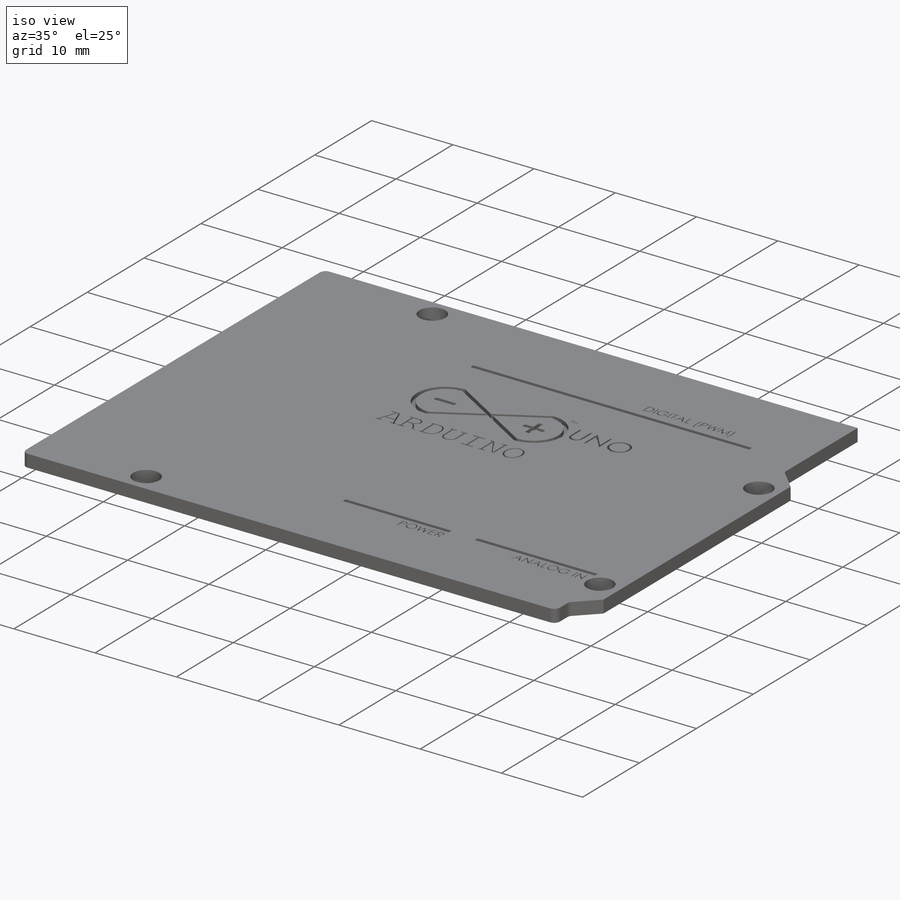
[diagram: iso view]
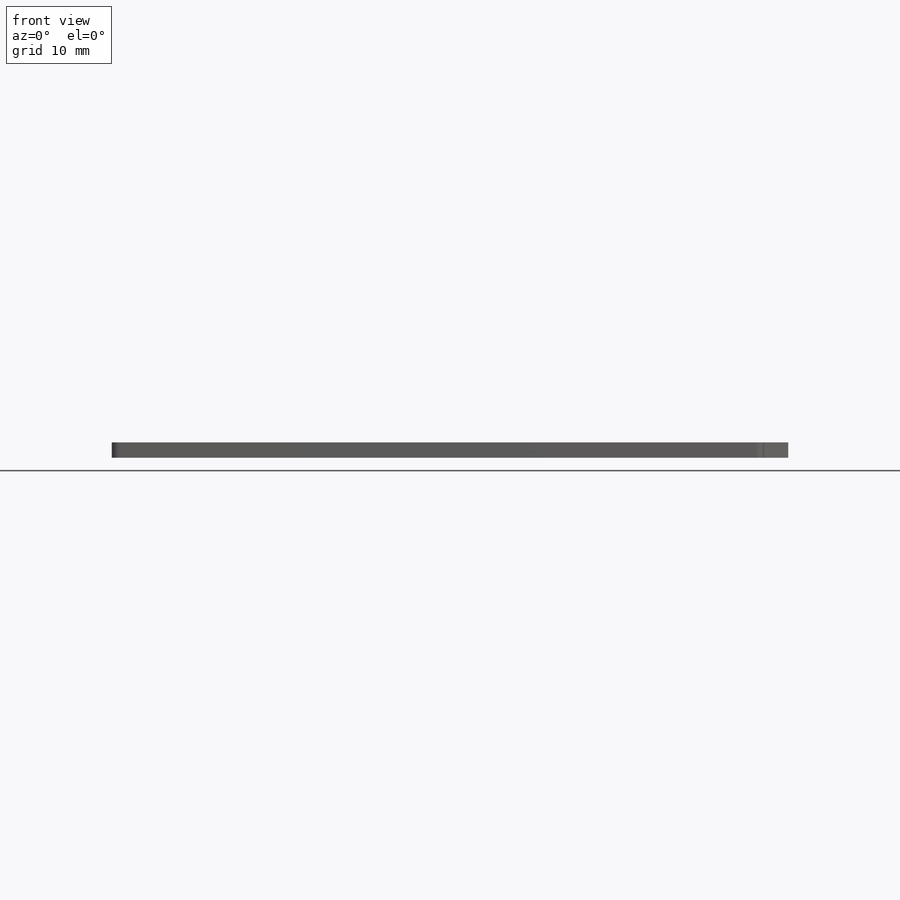
[diagram: front view]
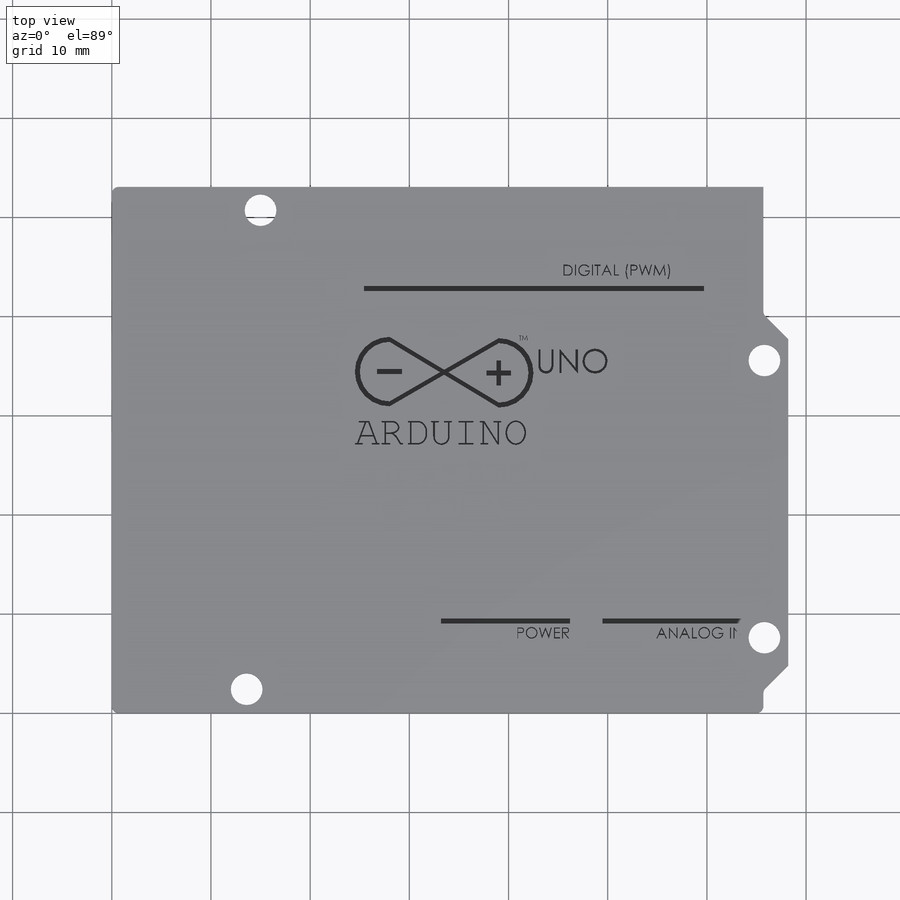
[diagram: top view]
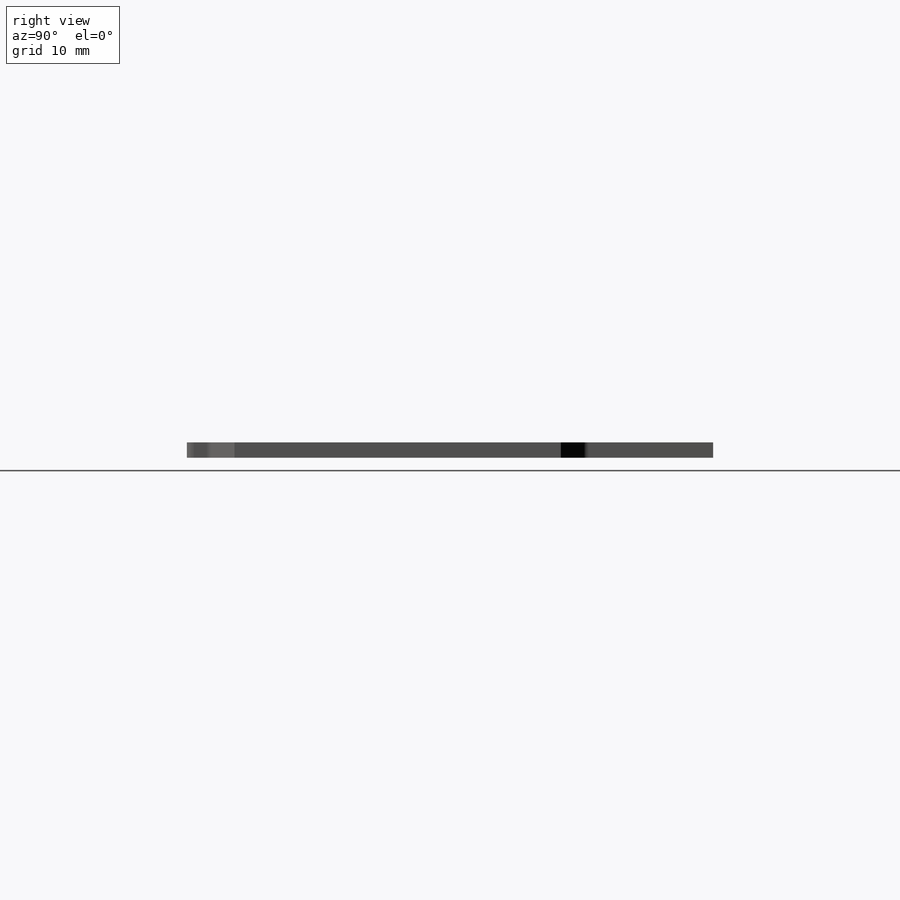
[diagram: right view]
SOLIDWORKS PART (.sldprt)
format: sldprt  version: not decoded by parser v0  size: 1,125,888 bytes
history: native  units: mm
features: sketch x6, cut_extrude x5, plane x3, material x1, extrude x1, fillet x1 (+10 scaffold rows collapsed)
feature tree (27):
  scaffold x10  (default folders/planes/origin — collapsed)
  material  "Material <not specified>"
  plane  "Plan de face"
  plane  "Plan de dessus"
  plane  "Plan de droite"
  sketch  "Esquisse1"  dims[c1.D8=3.2mm c1.D9=3.2mm c1.D10=3.2mm c1.D11=3.2mm c1.D12=3.2mm c1.D13=3.2mm c1.D14=3.2mm c1.D15=3.2mm c1.D16=3.2mm c1.D17=3.2mm c1.D18=3.2mm c1.D19=3.2mm c1.D1=53.05mm c1.D2=68.2mm c1.D3=2.5mm c1.D4=2.5mm c2.D4=135.0deg c2.D5=2.5mm c3.D5=135.0deg c3.D6=32.9mm c3.D7=2.3mm c3.D8=12.85mm c3.D12=2.4mm c3.D13=17.5mm c3.D14=7.6mm c3.D15=2.4mm c3.D16=15.0mm c3.D17=2.35mm c3.D18=2.4mm c3.D19=13.6mm c3.D20=28.05mm c4.D13=27.95mm]
  extrude  "Boss.-Extru.1"  Depth=1.55mm
  fillet  "Congé1"  Radius=0.7mm
  sketch  "Sketch1"  dims[c1.D1=0.5mm c1.D2=10.0mm c1.D3=~34.148922mm c2.D3=90.0deg c3.D3=6.0mm c3.D4=10.5mm c3.D1=0.5mm c3.D2=0.5mm]
  cut_extrude  "Cut-Extrude1"  Depth=0.5mm
  sketch  "Sketch2"  dims[c1.D1=~1.016341mm c1.D2=~13.57677mm c2.D2=90.0deg c3.D2=8.0mm]
  cut_extrude  "Cut-Extrude2"  Depth=0.5mm
  sketch  "Sketch3"  dims[D1=9.0mm D2=9.0mm D3=0.5mm D4=0.5mm D5=13.0mm D6=14.75mm D7=1.5mm D8=22.0mm D9=22.0mm D10=4.0mm D11=4.5mm]
  cut_extrude  "Cut-Extrude3"  Depth=0.5mm
  sketch  "Sketch5"  dims[c1.D1=7.0mm c1.D2=7.0mm c1.D3=6.0mm c1.D4=6.0mm c2.D1=0.5mm c2.D2=2.5mm c2.D5=0.5mm c2.D6=0.5mm c2.D7=2.5mm c2.D8=2.5mm]
  cut_extrude  "Cut-Extrude4"  Depth=0.5mm
  sketch  "Sketch6"  dims[c1.D1=26.0mm c1.D2=19.0mm c1.D3=6.5mm c1.D4=15.5mm c1.D5=2.0mm c1.D6=~2.000048mm c2.D5=2.0mm c2.D6=40.5mm]
  cut_extrude  "Cut-Extrude5"  Depth=0.5mm
decode coverage: 13 of 13 modeling features carry decoded parameters
note: ~ marks probable driven/reference dimensions
note: suppression state not decoded; provenance and decode notes live in map.json
